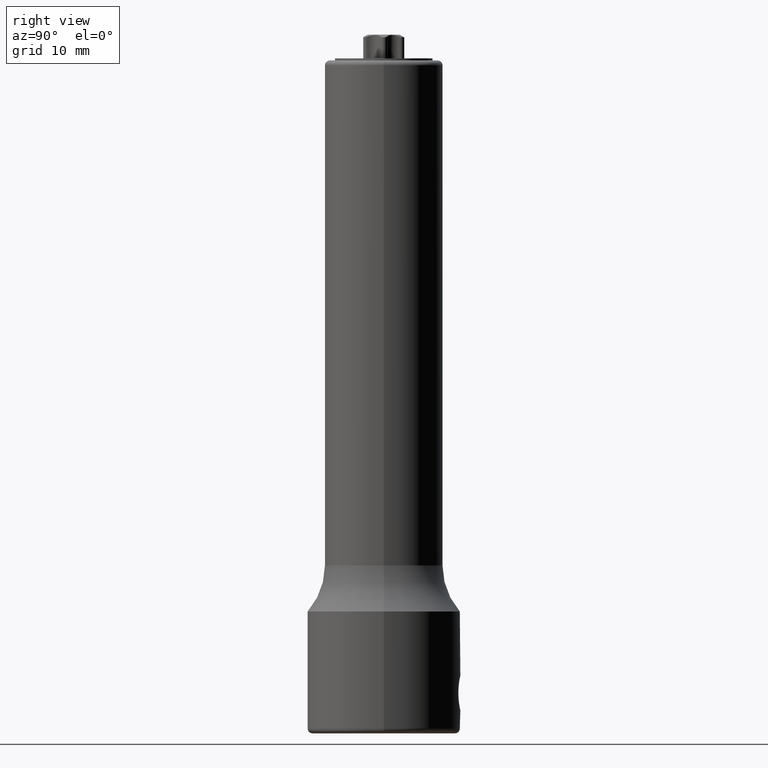
[diagram: clean part render]
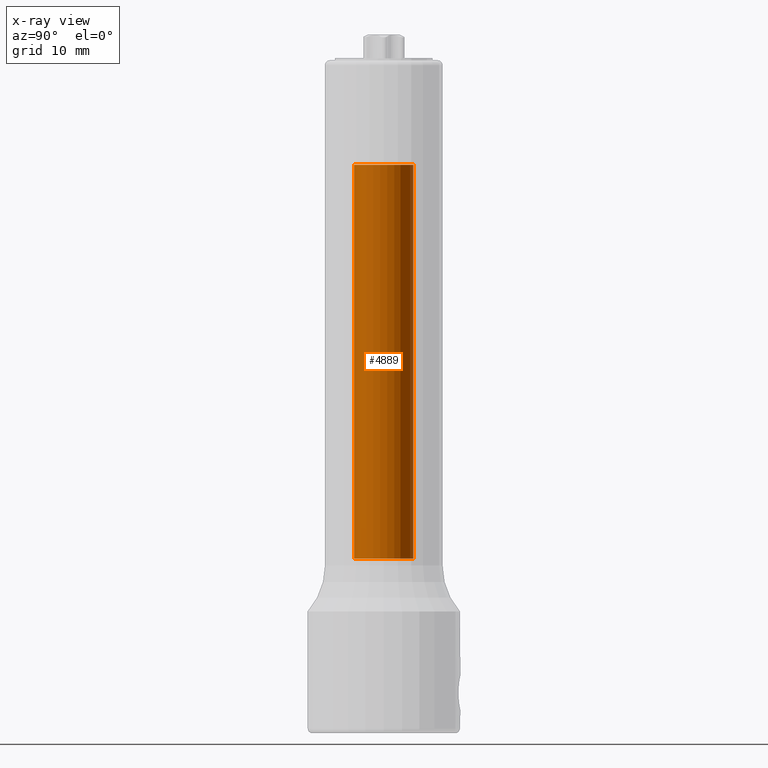
[diagram: x-ray — body ghosted, one internal face saturated and labeled with its STEP entity id]
A machine part, right view, then the same camera in x-ray: the body is ghosted and one INTERNAL B-rep face — a face not visible from any outside direction — is saturated and labeled: STEP entity #4889.
In plain terms, the highlighted cylindrical surface (edge-blend (fillet) strip) has radius 4.25 mm, axis along (0, 0, -1).
Its self-contained STEP definition (entity closure, byte-faithful):
#4359=CARTESIAN_POINT('',(0.E0,0.E0,8.13E1));
#4360=DIRECTION('',(0.E0,0.E0,1.E0));
#4361=DIRECTION('',(0.E0,1.E0,0.E0));
#4362=AXIS2_PLACEMENT_3D('',#4359,#4360,#4361);
#4367=DIRECTION('',(-7.361344416576E-11,7.777346122688E-11,-1.E0));
#4368=VECTOR('',#4367,5.649999999561E1);
#4369=CARTESIAN_POINT('',(4.159160115517E-9,4.249999995606E0,8.129999999561E1));
#4370=LINE('',#4369,#4368);
#4374=DIRECTION('',(7.361343094973E-11,-7.777341406696E-11,-1.E0));
#4375=VECTOR('',#4374,5.649999999561E1);
#4376=CARTESIAN_POINT('',(-4.159159368811E-9,-4.249999995606E0,
8.129999999561E1));
#4377=LINE('',#4376,#4375);
#4396=CARTESIAN_POINT('',(0.E0,0.E0,2.48E1));
#4397=DIRECTION('',(0.E0,0.E0,1.E0));
#4398=DIRECTION('',(0.E0,1.E0,0.E0));
#4399=AXIS2_PLACEMENT_3D('',#4396,#4397,#4398);
#4509=CARTESIAN_POINT('',(0.E0,4.25E0,2.48E1));
#4510=CARTESIAN_POINT('',(0.E0,-4.25E0,2.48E1));
#4511=VERTEX_POINT('',#4509);
#4512=VERTEX_POINT('',#4510);
#4517=CARTESIAN_POINT('',(0.E0,-4.25E0,8.13E1));
#4518=CARTESIAN_POINT('',(0.E0,4.25E0,8.13E1));
#4519=VERTEX_POINT('',#4517);
#4520=VERTEX_POINT('',#4518);
#4876=CARTESIAN_POINT('',(0.E0,0.E0,8.507999999668E1));
#4877=DIRECTION('',(0.E0,0.E0,-1.E0));
#4878=DIRECTION('',(0.E0,-1.E0,0.E0));
#4879=AXIS2_PLACEMENT_3D('',#4876,#4877,#4878);
#4880=CYLINDRICAL_SURFACE('',#4879,4.25E0);
#4882=ORIENTED_EDGE('',*,*,#4881,.F.);
#4883=ORIENTED_EDGE('',*,*,#4871,.T.);
#4885=ORIENTED_EDGE('',*,*,#4884,.T.);
#4886=ORIENTED_EDGE('',*,*,#4867,.F.);
#4887=EDGE_LOOP('',(#4882,#4883,#4885,#4886));
#4888=FACE_OUTER_BOUND('',#4887,.F.);
#4889=ADVANCED_FACE('',(#4888),#4880,.F.);
#4363=CIRCLE('',#4362,4.25E0);
#4400=CIRCLE('',#4399,4.25E0);
#4867=EDGE_CURVE('',#4519,#4512,#4377,.T.);
#4871=EDGE_CURVE('',#4520,#4511,#4370,.T.);
#4881=EDGE_CURVE('',#4520,#4519,#4363,.T.);
#4884=EDGE_CURVE('',#4511,#4512,#4400,.T.);